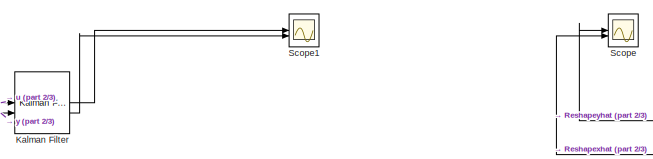
[diagram: root canvas - part 1/3, top center region]
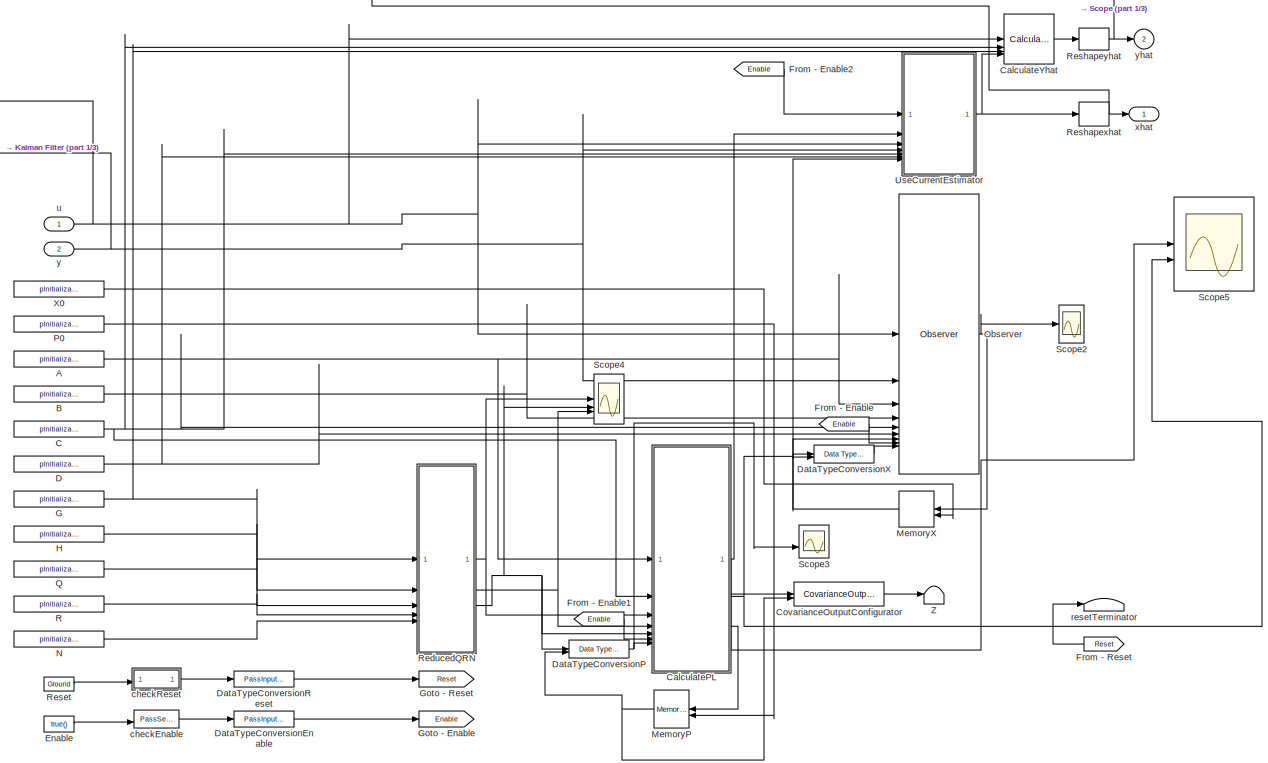
[diagram: root canvas - part 2/3, right side, full height]
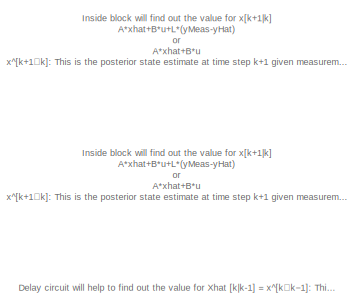
[diagram: root canvas - part 3/3, middle left region]
MODEL slx_a56ab98680fb
KIND model
CONFIG AbsTol = auto
CONFIG EnableMultiTasking = off
CONFIG FixedStep = auto
CONFIG MaxStep = auto
CONFIG MinStep = auto
CONFIG RelTol = 1e-3
CONFIG SampleTimeConstraint = Unconstrained
CONFIG SolverName = VariableStepAuto
CONFIG StartTime = 0.0
CONFIG StopTime = 10.0
BLOCK [Constant] A
  OutDataTypeStr = Inherit: Inherit via back propagation
  Value = pInitialization.A
  VectorParams1D = off
BLOCK [Constant] B
  OutDataTypeStr = Inherit: Inherit via back propagation
  Value = pInitialization.B
  VectorParams1D = off
BLOCK [Constant] C
  OutDataTypeStr = Inherit: Inherit via back propagation
  Value = pInitialization.C
  VectorParams1D = off
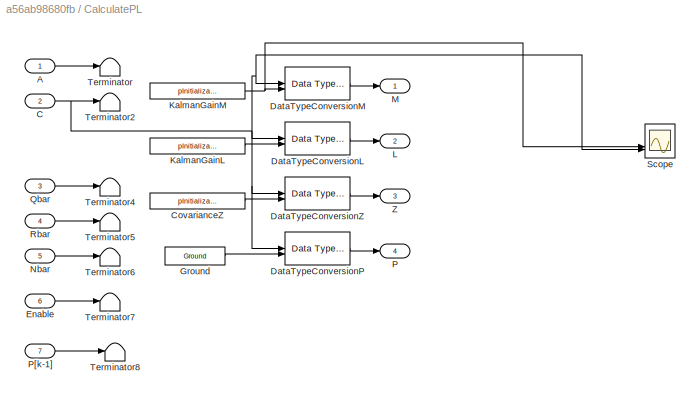
BLOCK [SubSystem] CalculatePL
  LibrarySourceBlock = ctrlSharedLib/KalmanFilterUtilities/ConstantPL
BLOCK [Inport] CalculatePL/A
BLOCK [Inport] CalculatePL/C
  Port = 2
BLOCK [Constant] CalculatePL/CovarianceZ
  Value = pInitialization.Z
BLOCK [Reference] CalculatePL/DataTypeConversionL  REF=simulink/Signal
Attributes/Data Type
Conversion
Inherited
  SourceBlock = simulink/Signal\nAttributes/Data Type\nConversion\nInherited
  SourceType = Conversion Inherited
BLOCK [Reference] CalculatePL/DataTypeConversionM  REF=simulink/Signal
Attributes/Data Type
Conversion
Inherited
  SourceBlock = simulink/Signal\nAttributes/Data Type\nConversion\nInherited
  SourceType = Conversion Inherited
BLOCK [Reference] CalculatePL/DataTypeConversionP  REF=simulink/Signal
Attributes/Data Type
Conversion
Inherited
  SourceBlock = simulink/Signal\nAttributes/Data Type\nConversion\nInherited
  SourceType = Conversion Inherited
BLOCK [Reference] CalculatePL/DataTypeConversionZ  REF=simulink/Signal
Attributes/Data Type
Conversion
Inherited
  SourceBlock = simulink/Signal\nAttributes/Data Type\nConversion\nInherited
  SourceType = Conversion Inherited
BLOCK [Inport] CalculatePL/Enable
  Port = 6
BLOCK [Reference] CalculatePL/Ground  REF=ctrlSharedLib/Utilities/Ground
  SourceBlock = ctrlSharedLib/Utilities/Ground
  SourceType = ctrlSharedLibGround
BLOCK [Constant] CalculatePL/KalmanGainL
  Value = pInitialization.L
BLOCK [Constant] CalculatePL/KalmanGainM
  Value = pInitialization.M
BLOCK [Outport] CalculatePL/L
  Port = 2
  VectorParamsAs1DForOutWhenUnconnected = off
BLOCK [Outport] CalculatePL/M
  VectorParamsAs1DForOutWhenUnconnected = off
BLOCK [Inport] CalculatePL/Nbar
  Port = 5
BLOCK [Outport] CalculatePL/P
  Port = 4
  VectorParamsAs1DForOutWhenUnconnected = off
BLOCK [Inport] CalculatePL/P[k-1]
  Port = 7
BLOCK [Inport] CalculatePL/Qbar
  Port = 3
BLOCK [Inport] CalculatePL/Rbar
  Port = 4
BLOCK [Scope] CalculatePL/Scope
  Floating = off
  NumInputPorts = 4
  ScopeSpecificationString = Simulink.scopes.TimeScopeBlockCfg('CurrentConfiguration', extmgr.ConfigurationSet(extmgr.Configuration('Core','General UI',true),extmgr.Configuration('Core','Source UI',true),extmgr.Configuration('Sources','WiredSimulink',true,'DataLoggingVariableName','ScopeData2'),extmgr.Configuration('Visuals','Time Domain',true,'SerializedDisplays',{struct('MinYLimReal','-0.125','MaxYLimReal','1.125','YLabelRe...<+2247ch>
BLOCK [Terminator] CalculatePL/Terminator
BLOCK [Terminator] CalculatePL/Terminator2
BLOCK [Terminator] CalculatePL/Terminator4
BLOCK [Terminator] CalculatePL/Terminator5
BLOCK [Terminator] CalculatePL/Terminator6
BLOCK [Terminator] CalculatePL/Terminator7
BLOCK [Terminator] CalculatePL/Terminator8
BLOCK [Outport] CalculatePL/Z
  Port = 3
  VectorParamsAs1DForOutWhenUnconnected = off
BLOCK [Reference] CalculateYhat  REF=ctrlSharedLib/KalmanFilterUtilities/CalculateYhatZeroD
  SourceBlock = ctrlSharedLib/KalmanFilterUtilities/CalculateYhatZeroD
  SourceType = ctrlKalmanFilterCalculateYhatZeroD
BLOCK [Reference] CovarianceOutputConfigurator  REF=ctrlSharedLib/Kalman Filter/CovarianceOutputConfigurator
  SourceBlock = ctrlSharedLib/Kalman Filter/CovarianceOutputConfigurator
  SourceType = SubSystem
BLOCK [Constant] D
  OutDataTypeStr = Inherit: Inherit via back propagation
  Value = pInitialization.D
  VectorParams1D = off
BLOCK [Reference] DataTypeConversionEnable  REF=ctrlSharedLib/Utilities/PassInputThrough
  SourceBlock = ctrlSharedLib/Utilities/PassInputThrough
BLOCK [Reference] DataTypeConversionP  REF=simulink/Signal
Attributes/Data Type
Conversion
Inherited
  SourceBlock = simulink/Signal\nAttributes/Data Type\nConversion\nInherited
  SourceType = Conversion Inherited
BLOCK [Reference] DataTypeConversionReset  REF=ctrlSharedLib/Utilities/PassInputThrough
  SourceBlock = ctrlSharedLib/Utilities/PassInputThrough
BLOCK [Reference] DataTypeConversionX  REF=simulink/Signal
Attributes/Data Type
Conversion
Inherited
  SourceBlock = simulink/Signal\nAttributes/Data Type\nConversion\nInherited
  SourceType = Conversion Inherited
BLOCK [Constant] Enable
  OutDataTypeStr = boolean
  Value = true()
BLOCK [From] From - Enable
  GotoTag = Enable
BLOCK [From] From - Enable1
  GotoTag = Enable
BLOCK [From] From - Enable2
  GotoTag = Enable
  NameLocation = top
BLOCK [From] From - Reset
  GotoTag = Reset
BLOCK [Constant] G
  OutDataTypeStr = Inherit: Inherit via back propagation
  Value = pInitialization.G
  VectorParams1D = off
BLOCK [Goto] Goto - Enable
  GotoTag = Enable
BLOCK [Goto] Goto - Reset
  GotoTag = Reset
BLOCK [Constant] H
  OutDataTypeStr = Inherit: Inherit via back propagation
  Value = pInitialization.H
  VectorParams1D = off
BLOCK [Reference] Kalman Filter  REF=ctrlSharedLib/Kalman Filter
  LibrarySourceBlock = cstblocks/State Estimation/Kalman Filter
  SourceBlock = ctrlSharedLib/Kalman Filter
  SourceType = ctrlKalmanFilter
BLOCK [Reference] MemoryP  REF=ctrlSharedLib/KalmanFilterUtilities/MemoryP
  SourceBlock = ctrlSharedLib/KalmanFilterUtilities/MemoryP
  SourceType = ctrlKalmanFilterNoMemoryP
BLOCK [Delay] MemoryX
  DelayLength = 1
  InitialConditionSource = Input port
  InputPortMap = u0,p4
BLOCK [Constant] N
  OutDataTypeStr = Inherit: Inherit via back propagation
  Value = pInitialization.N
  VectorParams1D = off
BLOCK [Reference] Observer  REF=ctrlSharedLib/Kalman Filter/Observer
  SourceBlock = ctrlSharedLib/Kalman Filter/Observer
  SourceType = SubSystem
BLOCK [Constant] P0
  OutDataTypeStr = Inherit: Inherit via back propagation
  Value = pInitialization.P0
BLOCK [Constant] Q
  OutDataTypeStr = Inherit: Inherit via back propagation
  Value = pInitialization.Q
  VectorParams1D = off
BLOCK [Constant] R
  OutDataTypeStr = Inherit: Inherit via back propagation
  Value = pInitialization.R
  VectorParams1D = off
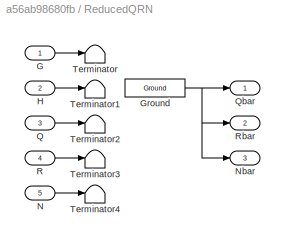
BLOCK [SubSystem] ReducedQRN
  LibrarySourceBlock = ctrlSharedLib/KalmanFilterUtilities/NoReducedQRN
BLOCK [Inport] ReducedQRN/G
  SampleTime = pInitialization.Ts
BLOCK [Reference] ReducedQRN/Ground  REF=ctrlSharedLib/Utilities/Ground
  SourceBlock = ctrlSharedLib/Utilities/Ground
  SourceType = ctrlSharedLibGround
BLOCK [Inport] ReducedQRN/H
  Port = 2
  SampleTime = pInitialization.Ts
BLOCK [Inport] ReducedQRN/N
  Port = 5
  SampleTime = pInitialization.Ts
BLOCK [Outport] ReducedQRN/Nbar
  Port = 3
  SampleTime = pInitialization.Ts
  VectorParamsAs1DForOutWhenUnconnected = off
BLOCK [Inport] ReducedQRN/Q
  Port = 3
  SampleTime = pInitialization.Ts
BLOCK [Outport] ReducedQRN/Qbar
  SampleTime = pInitialization.Ts
  VectorParamsAs1DForOutWhenUnconnected = off
BLOCK [Inport] ReducedQRN/R
  Port = 4
  SampleTime = pInitialization.Ts
BLOCK [Outport] ReducedQRN/Rbar
  Port = 2
  SampleTime = pInitialization.Ts
  VectorParamsAs1DForOutWhenUnconnected = off
BLOCK [Terminator] ReducedQRN/Terminator
BLOCK [Terminator] ReducedQRN/Terminator1
BLOCK [Terminator] ReducedQRN/Terminator2
BLOCK [Terminator] ReducedQRN/Terminator3
BLOCK [Terminator] ReducedQRN/Terminator4
BLOCK [Reference] Reset  REF=ctrlSharedLib/Utilities/Ground
  SourceBlock = ctrlSharedLib/Utilities/Ground
  SourceType = ctrlSharedLibGround
BLOCK [Reshape] Reshapexhat
BLOCK [Reshape] Reshapeyhat
BLOCK [Scope] Scope
  Floating = off
  NumInputPorts = 2
  ScopeSpecificationString = Simulink.scopes.TimeScopeBlockCfg('CurrentConfiguration', extmgr.ConfigurationSet(extmgr.Configuration('Core','General UI',true),extmgr.Configuration('Core','Source UI',true),extmgr.Configuration('Sources','WiredSimulink',true),extmgr.Configuration('Visuals','Time Domain',true,'SerializedDisplays',{struct('MinYLimReal','-0.14657','MaxYLimReal','1.1274','YLabelReal','','MinYLimMag','0.00000','MaxYL...<+1659ch>
BLOCK [Scope] Scope1
  Floating = off
  NumInputPorts = 2
  ScopeSpecificationString = Simulink.scopes.TimeScopeBlockCfg('CurrentConfiguration', extmgr.ConfigurationSet(extmgr.Configuration('Core','General UI',true),extmgr.Configuration('Core','Source UI',true),extmgr.Configuration('Sources','WiredSimulink',true,'DataLoggingVariableName','ScopeData1'),extmgr.Configuration('Visuals','Time Domain',true,'SerializedDisplays',{struct('MinYLimReal','-0.351','MaxYLimReal','1.15011','YLabel...<+1689ch>
BLOCK [Scope] Scope2
  Floating = off
  NumInputPorts = 2
  ScopeSpecificationString = Simulink.scopes.TimeScopeBlockCfg('CurrentConfiguration', extmgr.ConfigurationSet(extmgr.Configuration('Core','General UI',true),extmgr.Configuration('Core','Source UI',true),extmgr.Configuration('Sources','WiredSimulink',true,'DataLoggingVariableName','ScopeData1'),extmgr.Configuration('Visuals','Time Domain',true,'SerializedDisplays',{struct('MinYLimReal','-0.22631','MaxYLimReal','0.40757','YLab...<+1620ch>
BLOCK [Scope] Scope3
  Floating = off
  NumInputPorts = 2
  ScopeSpecificationString = Simulink.scopes.TimeScopeBlockCfg('CurrentConfiguration', extmgr.ConfigurationSet(extmgr.Configuration('Core','General UI',true),extmgr.Configuration('Core','Source UI',true),extmgr.Configuration('Sources','WiredSimulink',true,'DataLoggingVariableName','gain','DataLogging',true),extmgr.Configuration('Visuals','Time Domain',true,'SerializedDisplays',{struct('MinYLimReal','-0.14657','MaxYLimReal','1...<+2240ch>
BLOCK [Scope] Scope4
  Floating = off
  NumInputPorts = 3
  ScopeSpecificationString = Simulink.scopes.TimeScopeBlockCfg('CurrentConfiguration', extmgr.ConfigurationSet(extmgr.Configuration('Core','General UI',true),extmgr.Configuration('Core','Source UI',true),extmgr.Configuration('Sources','WiredSimulink',true,'DataLoggingVariableName','ScopeData1'),extmgr.Configuration('Visuals','Time Domain',true,'SerializedDisplays',{struct('MinYLimReal','-1.00000','MaxYLimReal','1.00000','YLab...<+1696ch>
BLOCK [Scope] Scope5
  Floating = off
  NumInputPorts = 3
  ScopeSpecificationString = Simulink.scopes.TimeScopeBlockCfg('CurrentConfiguration', extmgr.ConfigurationSet(extmgr.Configuration('Core','General UI',true),extmgr.Configuration('Core','Source UI',true),extmgr.Configuration('Sources','WiredSimulink',true,'DataLoggingVariableName','ScopeData1','DataLogging',true),extmgr.Configuration('Visuals','Time Domain',true,'SerializedDisplays',{struct('MinYLimReal','-0.09898','MaxYLimRe...<+2610ch>
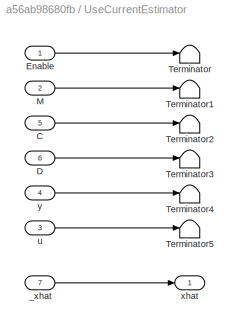
BLOCK [SubSystem] UseCurrentEstimator
  LibrarySourceBlock = ctrlSharedLib/KalmanFilterUtilities/DontUseCurrentEstimator
BLOCK [Inport] UseCurrentEstimator/C
  Port = 5
  SampleTime = pInitialization.Ts
BLOCK [Inport] UseCurrentEstimator/D
  Port = 6
  SampleTime = pInitialization.Ts
BLOCK [Inport] UseCurrentEstimator/Enable
  SampleTime = pInitialization.Ts
BLOCK [Inport] UseCurrentEstimator/M
  Port = 2
  SampleTime = pInitialization.Ts
BLOCK [Terminator] UseCurrentEstimator/Terminator
BLOCK [Terminator] UseCurrentEstimator/Terminator1
BLOCK [Terminator] UseCurrentEstimator/Terminator2
BLOCK [Terminator] UseCurrentEstimator/Terminator3
BLOCK [Terminator] UseCurrentEstimator/Terminator4
BLOCK [Terminator] UseCurrentEstimator/Terminator5
BLOCK [Inport] UseCurrentEstimator/_xhat
  Port = 7
  SampleTime = pInitialization.Ts
BLOCK [Inport] UseCurrentEstimator/u
  Port = 3
  SampleTime = pInitialization.Ts
BLOCK [Outport] UseCurrentEstimator/xhat
  SampleTime = pInitialization.Ts
  VectorParamsAs1DForOutWhenUnconnected = off
BLOCK [Inport] UseCurrentEstimator/y
  Port = 4
  SampleTime = pInitialization.Ts
BLOCK [Constant] X0
  OutDataTypeStr = Inherit: Inherit via back propagation
  Value = pInitialization.X0
  VectorParams1D = off
BLOCK [Terminator] Z
BLOCK [Reference] checkEnable  REF=ctrlSharedLib/KalmanFilterUtilities/PassSecondInputThrough
  SourceBlock = ctrlSharedLib/KalmanFilterUtilities/PassSecondInputThrough
  SourceType = ctrlKalmanFilterPassSecondInputThrough
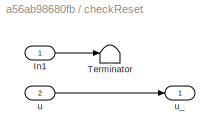
BLOCK [SubSystem] checkReset
  LibrarySourceBlock = ctrlSharedLib/KalmanFilterUtilities/PassSecondInputThrough
BLOCK [Inport] checkReset/In1
BLOCK [Terminator] checkReset/Terminator
BLOCK [Inport] checkReset/u
  Port = 2
BLOCK [Outport] checkReset/u_
  VectorParamsAs1DForOutWhenUnconnected = off
BLOCK [Terminator] resetTerminator
BLOCK [Inport] u
  NameLocation = top
BLOCK [Outport] xhat
  VectorParamsAs1DForOutWhenUnconnected = off
BLOCK [Inport] y
  Port = 2
BLOCK [Outport] yhat
  Port = 2
ANNOTATION (root): Delay circuit will help to find out the value for Xhat [k|k-1] = x^[k∣k−1]: This is the prior (or predicted) state estimate at time step k. It is based on all measurements up to time step k−1. Essentially, it is the estimate of the state before incorporating the measurement at time step k.
ANNOTATION (root): Inside block will find out the value for x[k+1|k] A*xhat+B*u+L*(yMeas-yHat) or A*xhat+B*u x^[k+1∣k]: This is the posterior state estimate at time step k+1 given measurements up to time step k. It is the predicted state for the next time step based on the current measurements and the model dynamics.
NET A:1 -> CalculatePL:1, Observer:3
LINE B:1 -> Observer:4
NET C:1 -> CalculatePL:2, CalculateYhat:2, Observer:5, UseCurrentEstimator:5
LINE CalculatePL/A:1 -> CalculatePL/Terminator:1
NET CalculatePL/C:1 -> CalculatePL/DataTypeConversionL:1, CalculatePL/DataTypeConversionM:1, CalculatePL/DataTypeConversionP:1, CalculatePL/DataTypeConversionZ:1, CalculatePL/Scope:3, CalculatePL/Terminator2:1
LINE CalculatePL/CovarianceZ:1 -> CalculatePL/DataTypeConversionZ:2
LINE CalculatePL/DataTypeConversionL:1 -> CalculatePL/L:1
LINE CalculatePL/DataTypeConversionM:1 -> CalculatePL/M:1
LINE CalculatePL/DataTypeConversionP:1 -> CalculatePL/P:1
LINE CalculatePL/DataTypeConversionZ:1 -> CalculatePL/Z:1
LINE CalculatePL/Enable:1 -> CalculatePL/Terminator7:1
LINE CalculatePL/Ground:1 -> CalculatePL/DataTypeConversionP:2
LINE CalculatePL/KalmanGainL:1 -> CalculatePL/DataTypeConversionL:2
NET CalculatePL/KalmanGainM:1 -> CalculatePL/DataTypeConversionM:2, CalculatePL/Scope:2
LINE CalculatePL/Nbar:1 -> CalculatePL/Terminator6:1
LINE CalculatePL/P[k-1]:1 -> CalculatePL/Terminator8:1
LINE CalculatePL/Qbar:1 -> CalculatePL/Terminator4:1
LINE CalculatePL/Rbar:1 -> CalculatePL/Terminator5:1
NET CalculatePL:1 -> Scope5:1, UseCurrentEstimator:2
NET CalculatePL:2 -> DataTypeConversionX:1, Observer:7, Scope5:2
LINE CalculatePL:3 -> CovarianceOutputConfigurator:1
LINE CalculatePL:4 -> MemoryP:1
LINE CalculateYhat:1 -> Reshapeyhat:1
LINE CovarianceOutputConfigurator:1 -> Z:1
NET D:1 -> Observer:6, UseCurrentEstimator:6
LINE DataTypeConversionEnable:1 -> Goto - Enable:1
NET DataTypeConversionP:1 -> CalculatePL:7, Scope3:2
LINE DataTypeConversionReset:1 -> Goto - Reset:1
LINE DataTypeConversionX:1 -> Observer:9
LINE Enable:1 -> checkEnable:2
LINE From - Enable1:1 -> CalculatePL:6
LINE From - Enable2:1 -> UseCurrentEstimator:1
LINE From - Enable:1 -> Observer:8
LINE From - Reset:1 -> resetTerminator:1
NET G:1 -> CalculateYhat:3, ReducedQRN:1
LINE H:1 -> ReducedQRN:2
LINE Kalman Filter:1 -> Scope1:1
LINE Kalman Filter:2 -> Scope1:2
NET MemoryP:1 -> CovarianceOutputConfigurator:2, DataTypeConversionP:2
NET MemoryX:1 -> DataTypeConversionX:2, UseCurrentEstimator:7
LINE N:1 -> ReducedQRN:5
NET Observer:1 -> MemoryX:1, Scope2:1
LINE P0:1 -> MemoryP:2
LINE Q:1 -> ReducedQRN:3
LINE R:1 -> ReducedQRN:4
LINE ReducedQRN/G:1 -> ReducedQRN/Terminator:1
NET ReducedQRN/Ground:1 -> ReducedQRN/Nbar:1, ReducedQRN/Qbar:1, ReducedQRN/Rbar:1
LINE ReducedQRN/H:1 -> ReducedQRN/Terminator1:1
LINE ReducedQRN/N:1 -> ReducedQRN/Terminator4:1
LINE ReducedQRN/Q:1 -> ReducedQRN/Terminator2:1
LINE ReducedQRN/R:1 -> ReducedQRN/Terminator3:1
NET ReducedQRN:1 -> CalculatePL:3, Scope4:1
NET ReducedQRN:2 -> CalculatePL:4, Scope4:3
NET ReducedQRN:3 -> CalculatePL:5, DataTypeConversionP:1, Scope4:2
LINE Reset:1 -> checkReset:2
NET Reshapexhat:1 -> Scope:2, xhat:1
NET Reshapeyhat:1 -> Scope:1, yhat:1
LINE UseCurrentEstimator/C:1 -> UseCurrentEstimator/Terminator2:1
LINE UseCurrentEstimator/D:1 -> UseCurrentEstimator/Terminator3:1
LINE UseCurrentEstimator/Enable:1 -> UseCurrentEstimator/Terminator:1
LINE UseCurrentEstimator/M:1 -> UseCurrentEstimator/Terminator1:1
LINE UseCurrentEstimator/_xhat:1 -> UseCurrentEstimator/xhat:1
LINE UseCurrentEstimator/u:1 -> UseCurrentEstimator/Terminator5:1
LINE UseCurrentEstimator/y:1 -> UseCurrentEstimator/Terminator4:1
NET UseCurrentEstimator:1 -> CalculateYhat:4, Reshapexhat:1
LINE X0:1 -> MemoryX:2
LINE checkEnable:1 -> DataTypeConversionEnable:1
LINE checkReset/In1:1 -> checkReset/Terminator:1
LINE checkReset/u:1 -> checkReset/u_:1
LINE checkReset:1 -> DataTypeConversionReset:1
NET u:1 -> CalculateYhat:1, Kalman Filter:1, Observer:1, UseCurrentEstimator:3
NET y:1 -> Kalman Filter:2, Observer:2, UseCurrentEstimator:4
note: NET lines group one-source signal fan-out (src -> all destinations, sorted); 1:1 wires keep LINE
